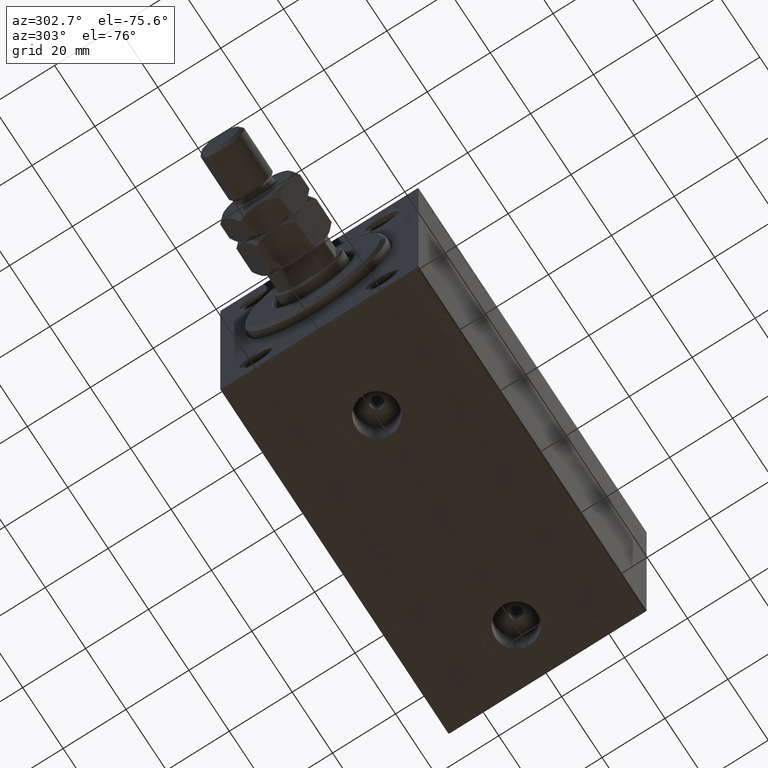
[diagram: clean part render]
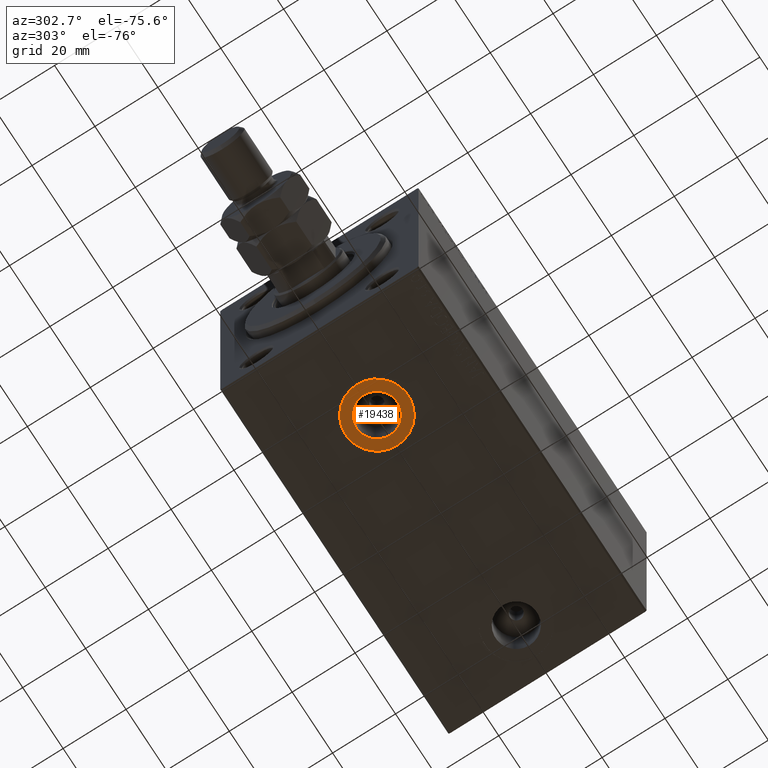
[diagram: same view with one face highlighted and labeled with its STEP entity id]
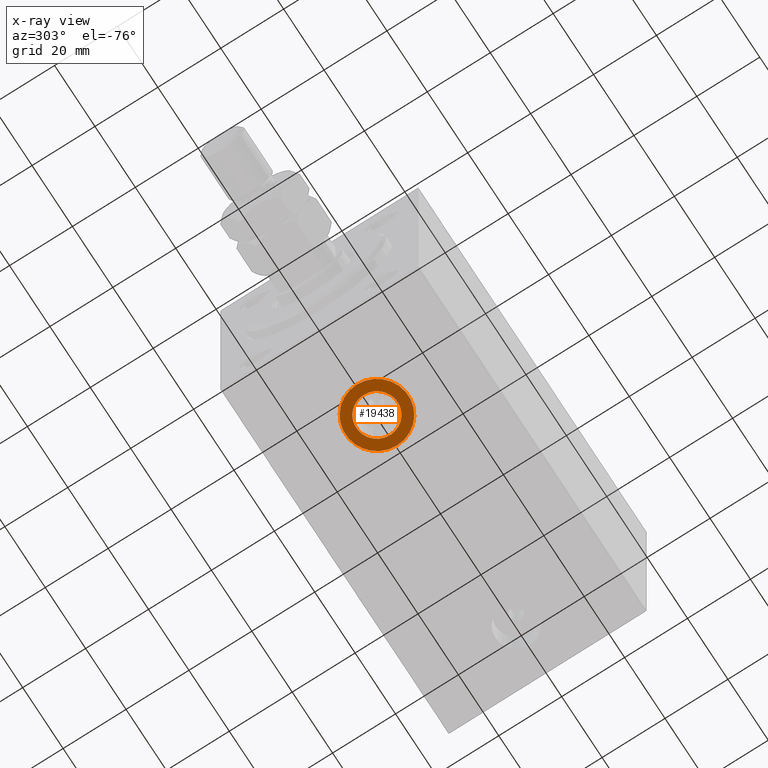
[diagram: x-ray of the same camera — body ghosted, the highlighted face saturated]
A machine part, auxiliary view. The second image highlights one B-rep face of the part: STEP entity #19438.
The next image is the same camera in x-ray: the body ghosted, the highlighted face saturated — about 0% of this face is hidden behind the body in this view.
In plain terms, the highlighted planar face has unit normal (0, 0, -1).
Its self-contained STEP definition (entity closure, byte-faithful):
#3089 = DIRECTION ( 'NONE',  ( -1.000000000000000000, 0.000000000000000000, 0.000000000000000000 ) ) ;
#5916 = DIRECTION ( 'NONE',  ( -1.000000000000000000, 0.000000000000000000, 0.000000000000000000 ) ) ;
#6399 = ORIENTED_EDGE ( 'NONE', *, *, #34168, .T. ) ;
#6432 = VERTEX_POINT ( 'NONE', #7217 ) ;
#6724 = DIRECTION ( 'NONE',  ( 0.000000000000000000, 0.000000000000000000, -1.000000000000000000 ) ) ;
#7217 = CARTESIAN_POINT ( 'NONE',  ( 38.50000000000000000, -2.482056851579446379E-15, -42.40000000000000568 ) ) ;
#9198 = CARTESIAN_POINT ( 'NONE',  ( 0.000000000000000000, 0.000000000000000000, -42.40000000000000568 ) ) ;
#9249 = DIRECTION ( 'NONE',  ( 0.000000000000000000, 0.000000000000000000, -1.000000000000000000 ) ) ;
#10134 = DIRECTION ( 'NONE',  ( -1.000000000000000000, 0.000000000000000000, -0.000000000000000000 ) ) ;
#12775 = FACE_BOUND ( 'NONE', #35695, .T. ) ;
#14058 = CARTESIAN_POINT ( 'NONE',  ( 28.50000000000000000, -3.706703650726799044E-15, -42.40000000000000568 ) ) ;
#18203 = AXIS2_PLACEMENT_3D ( 'NONE', #20924, #9249, #5916 ) ;
#19438 = ADVANCED_FACE ( 'NONE', ( #12775, #27311 ), #41853, .T. ) ;
#20263 = ORIENTED_EDGE ( 'NONE', *, *, #28235, .F. ) ;
#20924 = CARTESIAN_POINT ( 'NONE',  ( 28.50000000000000000, -3.706703650726799044E-15, -42.40000000000000568 ) ) ;
#21147 = CARTESIAN_POINT ( 'NONE',  ( 21.91999999999999815, -3.706703650726799044E-15, -42.40000000000000568 ) ) ;
#21729 = DIRECTION ( 'NONE',  ( 0.000000000000000000, 0.000000000000000000, -1.000000000000000000 ) ) ;
#22048 = AXIS2_PLACEMENT_3D ( 'NONE', #14058, #47179, #3089 ) ;
#22135 = DIRECTION ( 'NONE',  ( -1.000000000000000000, 0.000000000000000000, 0.000000000000000000 ) ) ;
#23840 = VERTEX_POINT ( 'NONE', #38783 ) ;
#25461 = AXIS2_PLACEMENT_3D ( 'NONE', #31994, #6724, #22135 ) ;
#27202 = VERTEX_POINT ( 'NONE', #28064 ) ;
#27311 = FACE_OUTER_BOUND ( 'NONE', #40041, .T. ) ;
#27324 = CIRCLE ( 'NONE', #18203, 6.580000000000002736 ) ;
#27966 = EDGE_CURVE ( 'NONE', #6432, #23840, #45598, .T. ) ;
#28064 = CARTESIAN_POINT ( 'NONE',  ( 35.07999999999999829, -2.900886056887840397E-15, -42.40000000000000568 ) ) ;
#28235 = EDGE_CURVE ( 'NONE', #38730, #27202, #27324, .T. ) ;
#28629 = AXIS2_PLACEMENT_3D ( 'NONE', #9198, #35653, #10134 ) ;
#31208 = CIRCLE ( 'NONE', #22048, 9.999999999999998224 ) ;
#31994 = CARTESIAN_POINT ( 'NONE',  ( 28.50000000000000000, -3.706703650726799044E-15, -42.40000000000000568 ) ) ;
#32140 = ORIENTED_EDGE ( 'NONE', *, *, #43755, .F. ) ;
#34168 = EDGE_CURVE ( 'NONE', #23840, #6432, #31208, .T. ) ;
#34576 = CIRCLE ( 'NONE', #25461, 6.580000000000002736 ) ;
#35653 = DIRECTION ( 'NONE',  ( 0.000000000000000000, 0.000000000000000000, -1.000000000000000000 ) ) ;
#35695 = EDGE_LOOP ( 'NONE', ( #20263, #32140 ) ) ;
#38730 = VERTEX_POINT ( 'NONE', #21147 ) ;
#38783 = CARTESIAN_POINT ( 'NONE',  ( 18.50000000000000355, -3.706703650726799044E-15, -42.40000000000000568 ) ) ;
#38809 = ORIENTED_EDGE ( 'NONE', *, *, #27966, .T. ) ;
#40041 = EDGE_LOOP ( 'NONE', ( #6399, #38809 ) ) ;
#41853 = PLANE ( 'NONE',  #28629 ) ;
#43204 = CARTESIAN_POINT ( 'NONE',  ( 28.50000000000000000, -3.706703650726799044E-15, -42.40000000000000568 ) ) ;
#43755 = EDGE_CURVE ( 'NONE', #27202, #38730, #34576, .T. ) ;
#45598 = CIRCLE ( 'NONE', #46353, 9.999999999999998224 ) ;
#46353 = AXIS2_PLACEMENT_3D ( 'NONE', #43204, #21729, #46770 ) ;
#46770 = DIRECTION ( 'NONE',  ( -1.000000000000000000, 0.000000000000000000, 0.000000000000000000 ) ) ;
#47179 = DIRECTION ( 'NONE',  ( 0.000000000000000000, 0.000000000000000000, -1.000000000000000000 ) ) ;